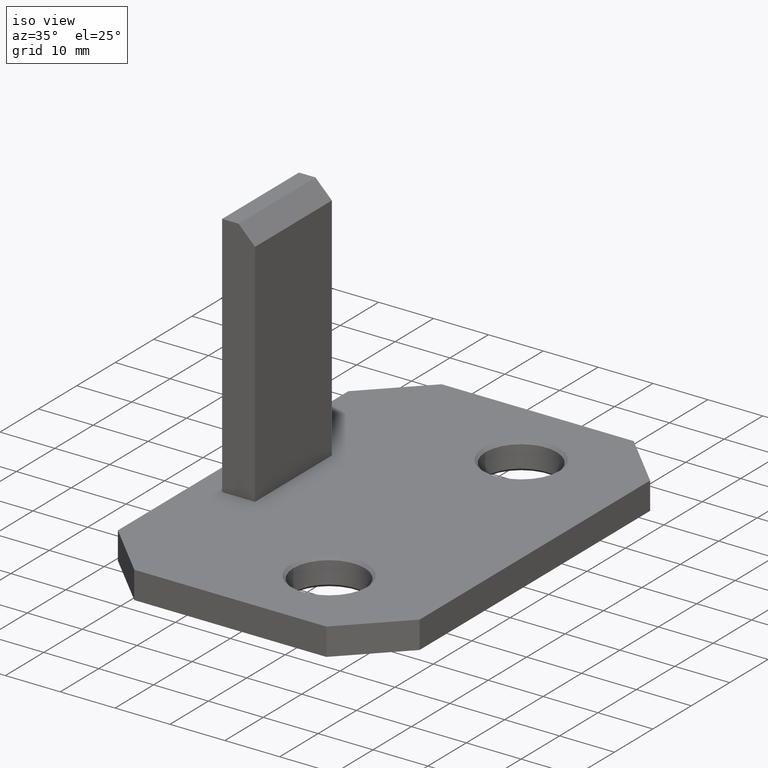
[diagram: clean part render]
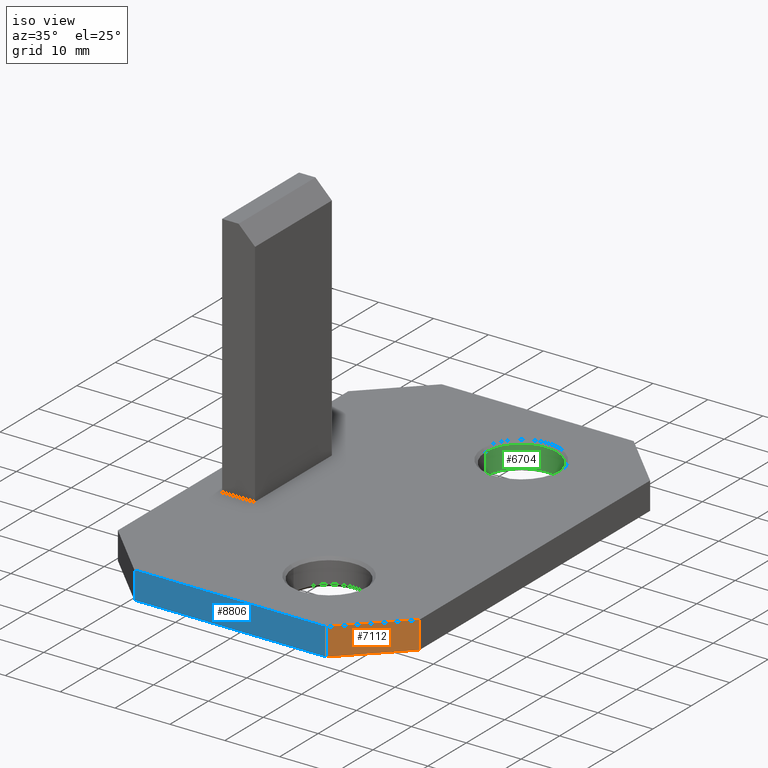
[diagram: same view with three faces highlighted in distinct colors, each labeled with its STEP entity id]
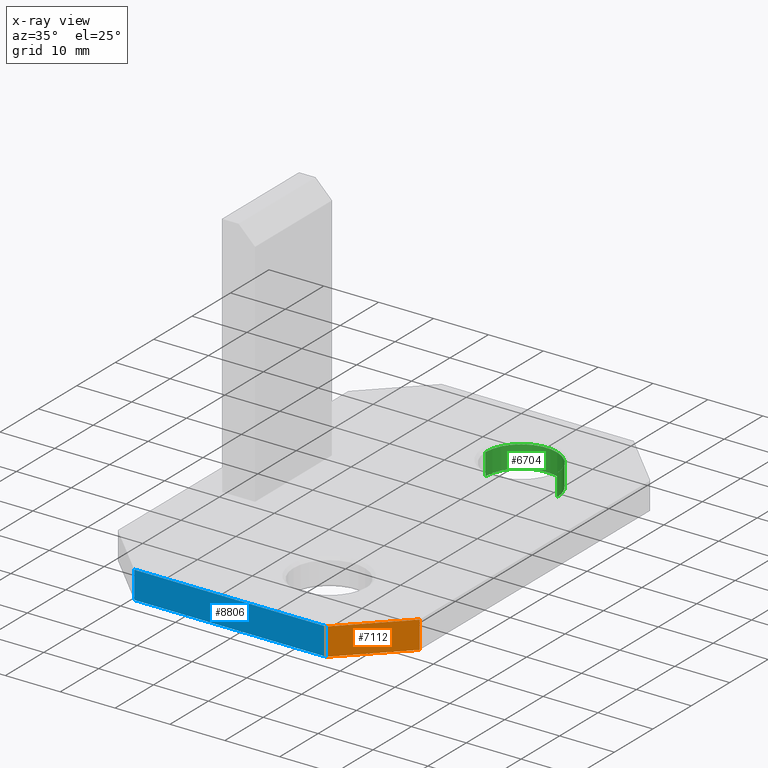
[diagram: x-ray of the same camera — body ghosted, the three highlighted faces saturated]
A machine part, iso view with three faces highlighted in distinct colors.
The next image is the same camera in x-ray (body ghosted, the three faces saturated) — at least one of them is partly hidden behind the body in this view.
Their STEP definitions:

[orange] entity #7112 — the highlighted planar face has unit normal (-0.7071, 0.7071, 0).
#134 = DIRECTION ( 'NONE',  ( -0.7071067811865477900, 0.7071067811865473500, 0.0000000000000000000 ) ) ;
#304 = ORIENTED_EDGE ( 'NONE', *, *, #7145, .F. ) ;
#682 = DIRECTION ( 'NONE',  ( 0.7071067811865473500, 0.7071067811865477900, -0.0000000000000000000 ) ) ;
#1012 = DIRECTION ( 'NONE',  ( -0.0000000000000000000, -0.0000000000000000000, -1.000000000000000000 ) ) ;
#1310 = CARTESIAN_POINT ( 'NONE',  ( 17.49999999999999600, -40.00000000000000000, 5.000000000000000000 ) ) ;
#1494 = ORIENTED_EDGE ( 'NONE', *, *, #6215, .F. ) ;
#1516 = LINE ( 'NONE', #7391, #7035 ) ;
#1534 = FACE_OUTER_BOUND ( 'NONE', #9177, .T. ) ;
#1603 = CARTESIAN_POINT ( 'NONE',  ( 27.49999999999998900, -30.00000000000000000, 5.000000000000000000 ) ) ;
#1612 = DIRECTION ( 'NONE',  ( 0.7071067811865473500, 0.7071067811865477900, -0.0000000000000000000 ) ) ;
#1613 = VERTEX_POINT ( 'NONE', #8560 ) ;
#2693 = ORIENTED_EDGE ( 'NONE', *, *, #5324, .T. ) ;
#2749 = AXIS2_PLACEMENT_3D ( 'NONE', #2973, #134, #5340 ) ;
#2973 = CARTESIAN_POINT ( 'NONE',  ( 27.49999999999998900, -30.00000000000000000, 5.000000000000000000 ) ) ;
#3086 = VERTEX_POINT ( 'NONE', #1603 ) ;
#3294 = VECTOR ( 'NONE', #1012, 1000.000000000000000 ) ;
#3420 = VERTEX_POINT ( 'NONE', #1310 ) ;
#3836 = DIRECTION ( 'NONE',  ( -0.0000000000000000000, -0.0000000000000000000, -1.000000000000000000 ) ) ;
#4519 = PLANE ( 'NONE',  #2749 ) ;
#5280 = VECTOR ( 'NONE', #1612, 1000.000000000000000 ) ;
#5324 = EDGE_CURVE ( 'NONE', #3420, #1613, #7568, .T. ) ;
#5340 = DIRECTION ( 'NONE',  ( -0.7071067811865473500, -0.7071067811865477900, 0.0000000000000000000 ) ) ;
#5522 = VECTOR ( 'NONE', #3836, 1000.000000000000000 ) ;
#6215 = EDGE_CURVE ( 'NONE', #3086, #7683, #9583, .T. ) ;
#6227 = CARTESIAN_POINT ( 'NONE',  ( 27.49999999999998900, -30.00000000000000000, 5.000000000000000000 ) ) ;
#6866 = CARTESIAN_POINT ( 'NONE',  ( 27.49999999999998900, -30.00000000000000000, 5.000000000000000000 ) ) ;
#6895 = ORIENTED_EDGE ( 'NONE', *, *, #8821, .T. ) ;
#7035 = VECTOR ( 'NONE', #682, 1000.000000000000000 ) ;
#7112 = ADVANCED_FACE ( 'NONE', ( #1534 ), #4519, .F. ) ;
#7145 = EDGE_CURVE ( 'NONE', #3420, #3086, #9326, .T. ) ;
#7391 = CARTESIAN_POINT ( 'NONE',  ( 27.49999999999998900, -30.00000000000000000, 0.0000000000000000000 ) ) ;
#7568 = LINE ( 'NONE', #7607, #5522 ) ;
#7607 = CARTESIAN_POINT ( 'NONE',  ( 17.49999999999999600, -40.00000000000000000, 5.000000000000000000 ) ) ;
#7683 = VERTEX_POINT ( 'NONE', #8063 ) ;
#8063 = CARTESIAN_POINT ( 'NONE',  ( 27.49999999999998900, -30.00000000000000000, 0.0000000000000000000 ) ) ;
#8560 = CARTESIAN_POINT ( 'NONE',  ( 17.49999999999999600, -40.00000000000000000, 0.0000000000000000000 ) ) ;
#8821 = EDGE_CURVE ( 'NONE', #1613, #7683, #1516, .T. ) ;
#9177 = EDGE_LOOP ( 'NONE', ( #6895, #1494, #304, #2693 ) ) ;
#9326 = LINE ( 'NONE', #6866, #5280 ) ;
#9583 = LINE ( 'NONE', #6227, #3294 ) ;

[blue] entity #8806 — the highlighted planar face has unit normal (0, 1, 0).
#121 = CARTESIAN_POINT ( 'NONE',  ( -17.50000000000000700, -40.00000000000000000, 5.000000000000000000 ) ) ;
#129 = CARTESIAN_POINT ( 'NONE',  ( -17.50000000000000700, -40.00000000000000000, 5.000000000000000000 ) ) ;
#607 = PLANE ( 'NONE',  #3692 ) ;
#1287 = FACE_OUTER_BOUND ( 'NONE', #1718, .T. ) ;
#1302 = LINE ( 'NONE', #6947, #7044 ) ;
#1310 = CARTESIAN_POINT ( 'NONE',  ( 17.49999999999999600, -40.00000000000000000, 5.000000000000000000 ) ) ;
#1329 = VERTEX_POINT ( 'NONE', #8555 ) ;
#1352 = VERTEX_POINT ( 'NONE', #6377 ) ;
#1507 = ORIENTED_EDGE ( 'NONE', *, *, #7935, .T. ) ;
#1613 = VERTEX_POINT ( 'NONE', #8560 ) ;
#1718 = EDGE_LOOP ( 'NONE', ( #1507, #1875, #9331, #8204 ) ) ;
#1758 = VECTOR ( 'NONE', #8267, 1000.000000000000000 ) ;
#1875 = ORIENTED_EDGE ( 'NONE', *, *, #5324, .F. ) ;
#2022 = EDGE_CURVE ( 'NONE', #1329, #3420, #5741, .T. ) ;
#2879 = CARTESIAN_POINT ( 'NONE',  ( -17.50000000000000700, -40.00000000000000000, 5.000000000000000000 ) ) ;
#3420 = VERTEX_POINT ( 'NONE', #1310 ) ;
#3625 = DIRECTION ( 'NONE',  ( 0.0000000000000000000, -0.0000000000000000000, 1.000000000000000000 ) ) ;
#3692 = AXIS2_PLACEMENT_3D ( 'NONE', #2879, #8176, #3625 ) ;
#3836 = DIRECTION ( 'NONE',  ( -0.0000000000000000000, -0.0000000000000000000, -1.000000000000000000 ) ) ;
#4118 = EDGE_CURVE ( 'NONE', #1329, #1352, #6063, .T. ) ;
#4600 = DIRECTION ( 'NONE',  ( -0.0000000000000000000, -0.0000000000000000000, -1.000000000000000000 ) ) ;
#5324 = EDGE_CURVE ( 'NONE', #3420, #1613, #7568, .T. ) ;
#5522 = VECTOR ( 'NONE', #3836, 1000.000000000000000 ) ;
#5741 = LINE ( 'NONE', #129, #1758 ) ;
#6063 = LINE ( 'NONE', #121, #7884 ) ;
#6377 = CARTESIAN_POINT ( 'NONE',  ( -17.50000000000000700, -40.00000000000000000, 0.0000000000000000000 ) ) ;
#6947 = CARTESIAN_POINT ( 'NONE',  ( -17.50000000000000700, -40.00000000000000000, 0.0000000000000000000 ) ) ;
#7044 = VECTOR ( 'NONE', #7725, 1000.000000000000000 ) ;
#7568 = LINE ( 'NONE', #7607, #5522 ) ;
#7607 = CARTESIAN_POINT ( 'NONE',  ( 17.49999999999999600, -40.00000000000000000, 5.000000000000000000 ) ) ;
#7725 = DIRECTION ( 'NONE',  ( 1.000000000000000000, 0.0000000000000000000, 0.0000000000000000000 ) ) ;
#7884 = VECTOR ( 'NONE', #4600, 1000.000000000000000 ) ;
#7935 = EDGE_CURVE ( 'NONE', #1352, #1613, #1302, .T. ) ;
#8176 = DIRECTION ( 'NONE',  ( 0.0000000000000000000, 1.000000000000000000, 0.0000000000000000000 ) ) ;
#8204 = ORIENTED_EDGE ( 'NONE', *, *, #4118, .T. ) ;
#8267 = DIRECTION ( 'NONE',  ( 1.000000000000000000, 0.0000000000000000000, 0.0000000000000000000 ) ) ;
#8555 = CARTESIAN_POINT ( 'NONE',  ( -17.50000000000000700, -40.00000000000000000, 5.000000000000000000 ) ) ;
#8560 = CARTESIAN_POINT ( 'NONE',  ( 17.49999999999999600, -40.00000000000000000, 0.0000000000000000000 ) ) ;
#8806 = ADVANCED_FACE ( 'NONE', ( #1287 ), #607, .F. ) ;
#9331 = ORIENTED_EDGE ( 'NONE', *, *, #2022, .F. ) ;

[green] entity #6704 — the highlighted cylindrical surface (partial cylindrical patch) has radius 6.5 mm, axis along (-0, -0, -1).
#3 = DIRECTION ( 'NONE',  ( 1.000000000000000000, 0.0000000000000000000, 0.0000000000000000000 ) ) ;
#42 = CARTESIAN_POINT ( 'NONE',  ( 0.9999999999999931200, 25.00000000000000000, 0.4999999999999943900 ) ) ;
#126 = DIRECTION ( 'NONE',  ( -0.0000000000000000000, -0.0000000000000000000, -1.000000000000000000 ) ) ;
#179 = CARTESIAN_POINT ( 'NONE',  ( 7.499999999999996400, 25.00000000000000000, 5.000000000000000000 ) ) ;
#217 = ORIENTED_EDGE ( 'NONE', *, *, #2941, .T. ) ;
#381 = LINE ( 'NONE', #2401, #7904 ) ;
#563 = CARTESIAN_POINT ( 'NONE',  ( 14.00000000000000000, 25.00000000000000000, 4.500000000000002700 ) ) ;
#919 = DIRECTION ( 'NONE',  ( -0.0000000000000000000, -0.0000000000000000000, -1.000000000000000000 ) ) ;
#1155 = CARTESIAN_POINT ( 'NONE',  ( 7.499999999999996400, 25.00000000000000000, 4.500000000000002700 ) ) ;
#1441 = EDGE_CURVE ( 'NONE', #4917, #8905, #4253, .T. ) ;
#1837 = AXIS2_PLACEMENT_3D ( 'NONE', #8509, #126, #5332 ) ;
#2261 = VECTOR ( 'NONE', #3009, 1000.000000000000000 ) ;
#2336 = EDGE_CURVE ( 'NONE', #3996, #3935, #381, .T. ) ;
#2377 = DIRECTION ( 'NONE',  ( -0.0000000000000000000, -0.0000000000000000000, -1.000000000000000000 ) ) ;
#2401 = CARTESIAN_POINT ( 'NONE',  ( 13.99999999999999800, 25.00000000000000000, 5.000000000000000000 ) ) ;
#2568 = CIRCLE ( 'NONE', #1837, 6.500000000000002700 ) ;
#2755 = ORIENTED_EDGE ( 'NONE', *, *, #3388, .T. ) ;
#2941 = EDGE_CURVE ( 'NONE', #8905, #3935, #2568, .T. ) ;
#2996 = ORIENTED_EDGE ( 'NONE', *, *, #1441, .T. ) ;
#3009 = DIRECTION ( 'NONE',  ( -0.0000000000000000000, -0.0000000000000000000, -1.000000000000000000 ) ) ;
#3388 = EDGE_CURVE ( 'NONE', #3996, #4917, #7161, .T. ) ;
#3935 = VERTEX_POINT ( 'NONE', #9500 ) ;
#3996 = VERTEX_POINT ( 'NONE', #563 ) ;
#4253 = LINE ( 'NONE', #7420, #2261 ) ;
#4368 = ORIENTED_EDGE ( 'NONE', *, *, #2336, .F. ) ;
#4435 = AXIS2_PLACEMENT_3D ( 'NONE', #179, #919, #6126 ) ;
#4508 = DIRECTION ( 'NONE',  ( 0.0000000000000000000, 0.0000000000000000000, 1.000000000000000000 ) ) ;
#4854 = AXIS2_PLACEMENT_3D ( 'NONE', #1155, #4508, #3 ) ;
#4917 = VERTEX_POINT ( 'NONE', #9131 ) ;
#5332 = DIRECTION ( 'NONE',  ( 1.000000000000000000, 0.0000000000000000000, 0.0000000000000000000 ) ) ;
#5384 = FACE_OUTER_BOUND ( 'NONE', #6347, .T. ) ;
#6126 = DIRECTION ( 'NONE',  ( -1.000000000000000000, 0.0000000000000000000, 0.0000000000000000000 ) ) ;
#6347 = EDGE_LOOP ( 'NONE', ( #4368, #2755, #2996, #217 ) ) ;
#6704 = ADVANCED_FACE ( 'NONE', ( #5384 ), #7191, .F. ) ;
#7161 = CIRCLE ( 'NONE', #4854, 6.500000000000002700 ) ;
#7191 = CYLINDRICAL_SURFACE ( 'NONE', #4435, 6.500000000000003600 ) ;
#7420 = CARTESIAN_POINT ( 'NONE',  ( 0.9999999999999931200, 25.00000000000000000, 5.000000000000000000 ) ) ;
#7904 = VECTOR ( 'NONE', #2377, 1000.000000000000000 ) ;
#8509 = CARTESIAN_POINT ( 'NONE',  ( 7.499999999999996400, 25.00000000000000000, 0.4999999999999943900 ) ) ;
#8905 = VERTEX_POINT ( 'NONE', #42 ) ;
#9131 = CARTESIAN_POINT ( 'NONE',  ( 0.9999999999999931200, 25.00000000000000000, 4.500000000000002700 ) ) ;
#9500 = CARTESIAN_POINT ( 'NONE',  ( 14.00000000000000000, 25.00000000000000000, 0.4999999999999943900 ) ) ;